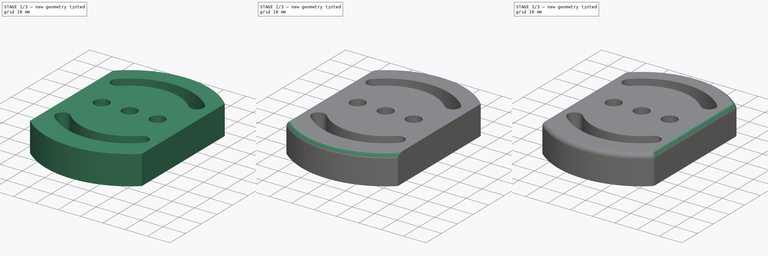
[diagram: build sequence overview — one tinted view per stage of 3, left to right]
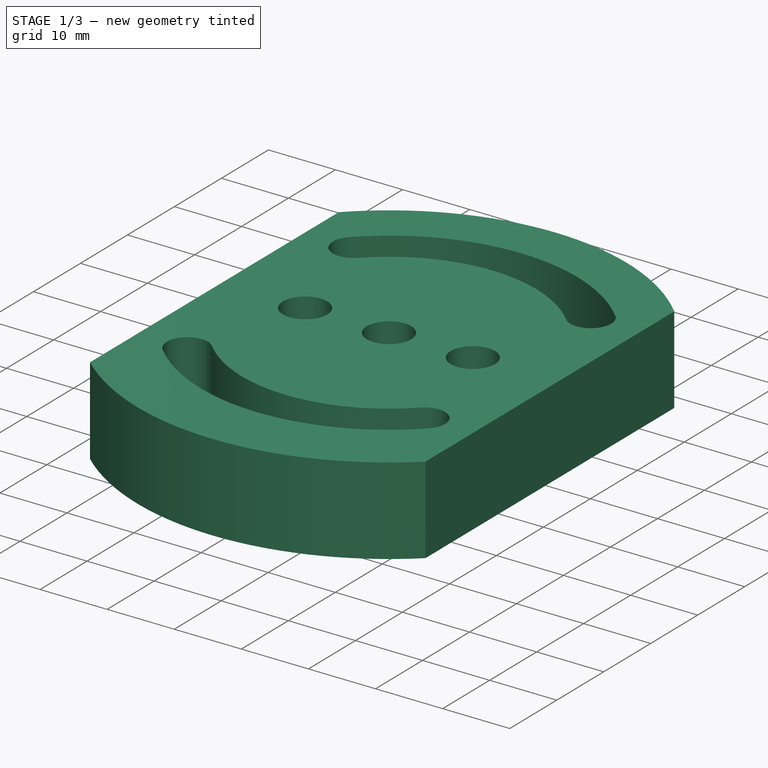
[diagram: stage 1 of 3 — iso view after this stage's code; geometry added in this stage tinted green]
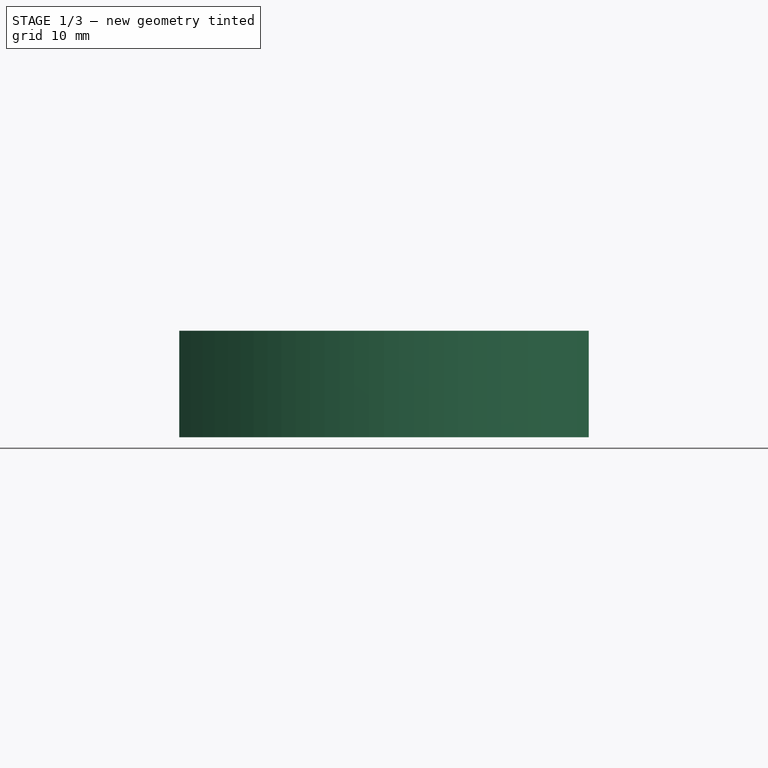
[diagram: stage 1 of 3 — front view after this stage's code; geometry added in this stage tinted green]
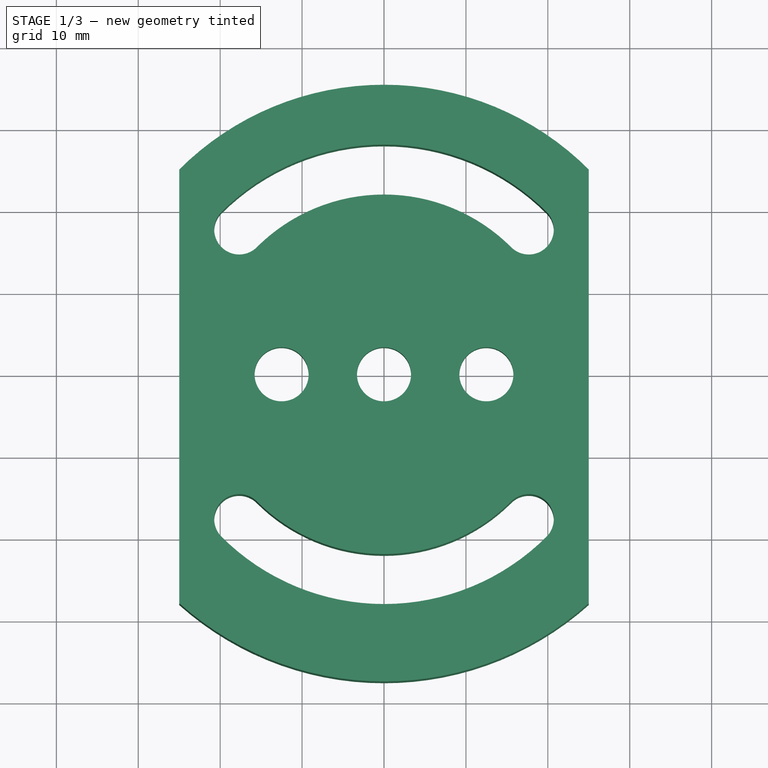
[diagram: stage 1 of 3 — top view after this stage's code; geometry added in this stage tinted green]
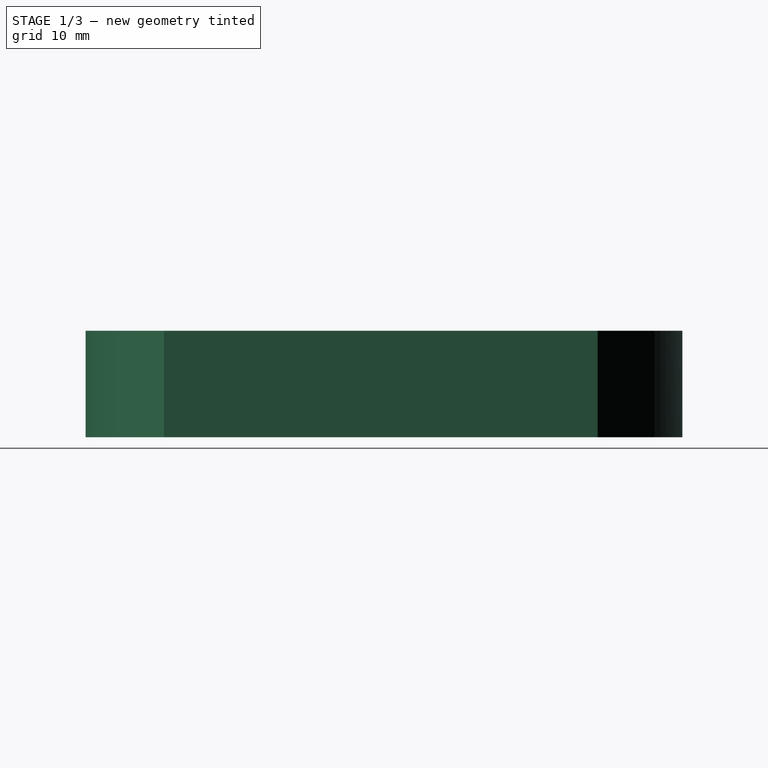
[diagram: stage 1 of 3 — right view after this stage's code; geometry added in this stage tinted green]
FCSTD DOCUMENT  (FreeCAD 0.20R29410 (Git))
Label: Post Mount
License: All rights reserved
LicenseURL: http://en.wikipedia.org/wiki/All_rights_reserved
objects: PartDesign::Fillet×4, Sketcher::SketchObject×2, App::Part×1, PartDesign::Pad×1, PartDesign::Hole×1, PartDesign::Body×1
note: 15 computed .brp shape members not serialized (recipe doc carries the construction recipe); baked Part::Feature solids carry a one-line shape summary decoded from their .brp

FEATURE [App::Part] Part
  Origin = -> Origin
FEATURE [Sketcher::SketchObject] Sketch
  FullyConstrained = true
  MapMode = 5
  Support = -> [XY_Plane001]
  sketch-geometry (16):
    g0: ArcOfCircle CenterX=0 CenterY=0 CenterZ=0 NormalX=0 NormalY=0 NormalZ=1 AngleXU=0 Radius=28.05 StartAngle=3.92699 EndAngle=5.49779
    g1: ArcOfCircle CenterX=0 CenterY=0 CenterZ=0 NormalX=0 NormalY=0 NormalZ=1 AngleXU=0 Radius=21.95 StartAngle=3.92699 EndAngle=5.49779
    g2: ArcOfCircle CenterX=-17.6777 CenterY=-17.6777 CenterZ=0 NormalX=0 NormalY=0 NormalZ=1 AngleXU=0 Radius=3.05 StartAngle=0.785398 EndAngle=3.92699
    g3: ArcOfCircle CenterX=17.6777 CenterY=-17.6777 CenterZ=0 NormalX=0 NormalY=0 NormalZ=1 AngleXU=0 Radius=3.05 StartAngle=5.49779 EndAngle=8.63938
    g4: ArcOfCircle CenterX=0 CenterY=0 CenterZ=0 NormalX=0 NormalY=0 NormalZ=1 AngleXU=0 Radius=35.3553 StartAngle=0.785398 EndAngle=2.35619
    g5: ArcOfCircle CenterX=1.2e-15 CenterY=4.4e-15 CenterZ=0 NormalX=0 NormalY=0 NormalZ=1 AngleXU=0 Radius=37.5 StartAngle=3.98266 EndAngle=5.44212
    g6: LineSegment StartX=-25 StartY=-27.9508 StartZ=0 EndX=-25 EndY=25 EndZ=0
    g7: LineSegment StartX=25 StartY=25 StartZ=0 EndX=25 EndY=-27.9508 EndZ=0
    g8: LineSegment StartX=0 StartY=0 StartZ=0 EndX=-17.6777 EndY=-17.6777 EndZ=0
    g9: LineSegment StartX=0 StartY=0 StartZ=0 EndX=17.6777 EndY=-17.6777 EndZ=0
    g10: ArcOfCircle CenterX=-17.6777 CenterY=17.6777 CenterZ=0 NormalX=0 NormalY=0 NormalZ=1 AngleXU=0 Radius=3.05 StartAngle=2.35619 EndAngle=5.49779
    g11: ArcOfCircle CenterX=1.2e-15 CenterY=4.4e-15 CenterZ=0 NormalX=0 NormalY=0 NormalZ=1 AngleXU=0 Radius=21.95 StartAngle=0.785397 EndAngle=2.35619
    g12: ArcOfCircle CenterX=0 CenterY=0 CenterZ=0 NormalX=0 NormalY=0 NormalZ=1 AngleXU=0 Radius=28.05 StartAngle=0.785398 EndAngle=2.35619
    g13: ArcOfCircle CenterX=17.6777 CenterY=17.6777 CenterZ=0 NormalX=0 NormalY=0 NormalZ=1 AngleXU=0 Radius=3.05 StartAngle=3.927 EndAngle=7.06858
    g14: LineSegment StartX=-17.6777 StartY=17.6777 StartZ=0 EndX=0 EndY=0 EndZ=0
    g15: LineSegment StartX=17.6777 StartY=17.6777 StartZ=0 EndX=0 EndY=0 EndZ=0
  constraints (42):
    c: Coincident(g1,g0)
    c: Tangent(g2,g0) = -1.5708
    c: Tangent(g2,g1) = 1.5708
    c: Tangent(g1,g3) = 1.5708
    c: Tangent(g0,g3) = -1.5708
    c: Coincident(g4,g-1)
    c: Angle(g4) = 1.5708
    c: Distance(g5,g4) = 37.5
    c: Distance(g5,g4) = 37.5
    c: Radius(g3) = 3.05
    c: Coincident(g0,g4)
    c: Coincident(g6,g4)
    c: Vertical(g6)
    c: Coincident(g7,g4)
    c: Coincident(g7,g5)
    c: Vertical(g7)
    c: DistanceX(g4,g4) = 50
    c: Horizontal(g6,g5)
    c: Coincident(g8,g0)
    c: Coincident(g8,g2)
    c: Coincident(g9,g0)
    c: Coincident(g9,g3)
    c: Angle(g8,g9) = 1.5708
    c: Coincident(g5,g6)
    c: Distance(g0,g3) = 25
    c: Coincident(g11,g5)
    c: Coincident(g12,g0)
    c: Coincident(g13,g12)
    c: Coincident(g13,g11)
    c: Radius(g10) = 3.05
    c: Radius(g13) = 3.05
    c: Tangent(g12,g10) = -1.5708
    c: Tangent(g11,g10) = 1.5708
    c: Symmetric(g2,g13,g0)
    c: Vertical(g2,g10)
    c: Vertical(g3,g13)
    c: Coincident(g14,g10)
    c: Coincident(g14,g0)
    c: Coincident(g15,g13)
    c: Coincident(g15,g0)
    c: Angle(g15,g14) = 1.5708
    c: Radius(g5) = 37.5
FEATURE [PartDesign::Pad] Pad
  Direction = (0,0,1)
  Length = 13
  Length2 = 10
  Profile = -> Sketch
  ReferenceAxis = -> Sketch [N_Axis]
  Refine = true
  Type = 0
FEATURE [Sketcher::SketchObject] Sketch001
  FullyConstrained = true
  MapMode = 5
  Placement = pos=(0,0,0) rot=(1,0,0;3.14159rad)
  Support = -> [Pad]
  sketch-geometry (3):
    g0: Circle CenterX=0 CenterY=0 CenterZ=0 NormalX=0 NormalY=0 NormalZ=1 AngleXU=0 Radius=3.05
    g1: Circle CenterX=-12.5 CenterY=0 CenterZ=0 NormalX=0 NormalY=0 NormalZ=1 AngleXU=0 Radius=3.05
    g2: Circle CenterX=12.5 CenterY=0 CenterZ=0 NormalX=0 NormalY=0 NormalZ=1 AngleXU=0 Radius=3.05
  constraints (7):
    c: Coincident(g0,g-1)
    c: Horizontal(g1,g0)
    c: Distance(g1,g0) = 12.5
    c: Symmetric(g1,g2,g0)
    c: Radius(g1) = 3.05
    c: Radius(g2) = 3.05
    c: Radius(g0) = 3.05
FEATURE [PartDesign::Hole] Hole
  BaseFeature = -> Pad
  CustomThreadClearance = 0
  Depth = 25
  DepthType = 0
  Diameter = 6.6
  DrillForDepth = false
  DrillPoint = 1
  DrillPointAngle = 118
  HoleCutCountersinkAngle = 90
  HoleCutCustomValues = false
  HoleCutDepth = 6.4
  HoleCutDiameter = 11
  HoleCutType = 1
  ModelThread = false
  Profile = -> Sketch001
  Refine = true
  Tapered = false
  TaperedAngle = 90
  ThreadClass = 0
  ThreadDepth = 25
  ThreadDepthType = 0
  ThreadDirection = 0
  ThreadFit = 0
  ThreadSize = 14
  ThreadType = 1
  Threaded = false
  UseCustomThreadClearance = false
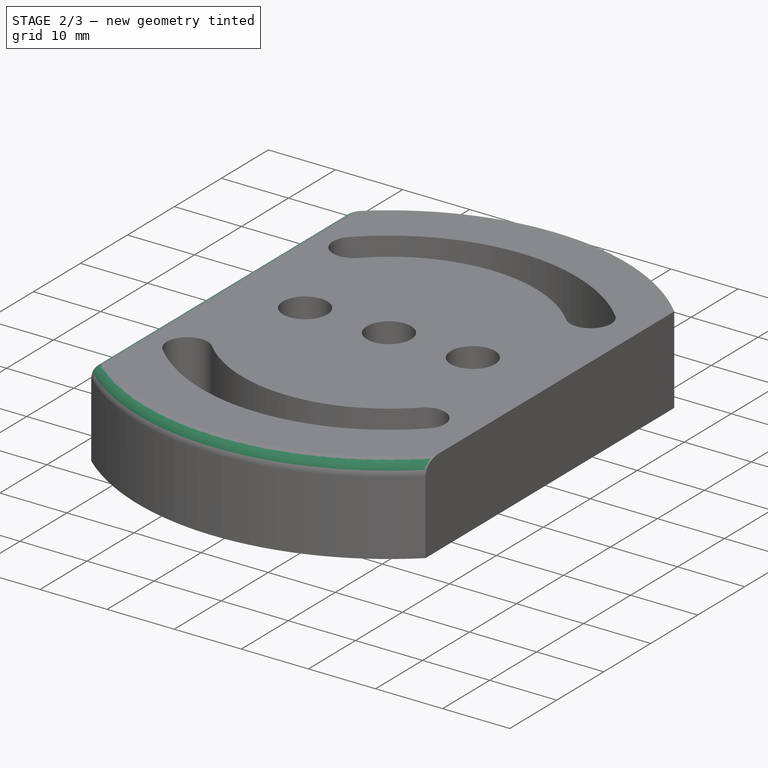
[diagram: stage 2 of 3 — iso view after this stage's code; geometry added in this stage tinted green]
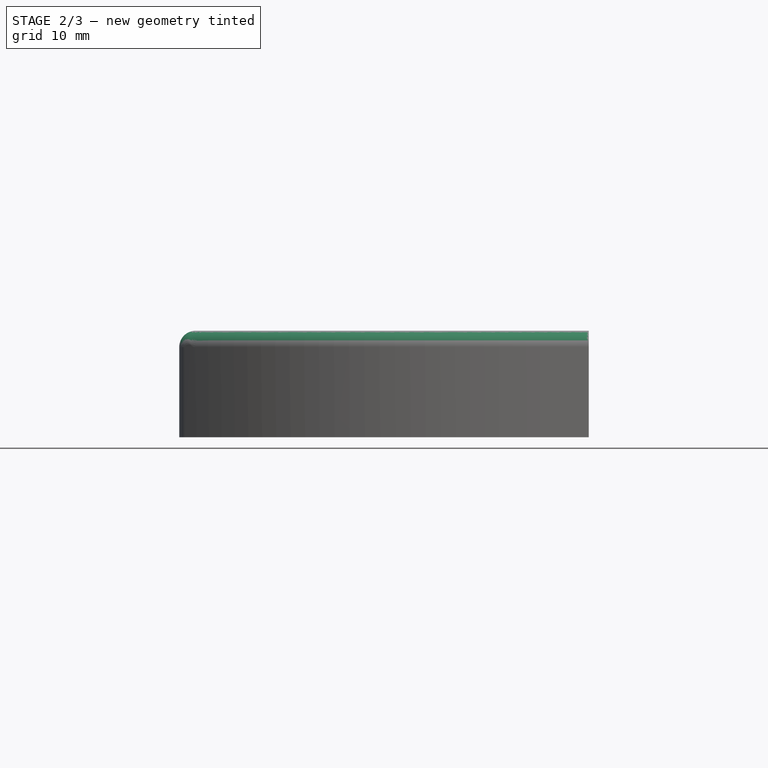
[diagram: stage 2 of 3 — front view after this stage's code; geometry added in this stage tinted green]
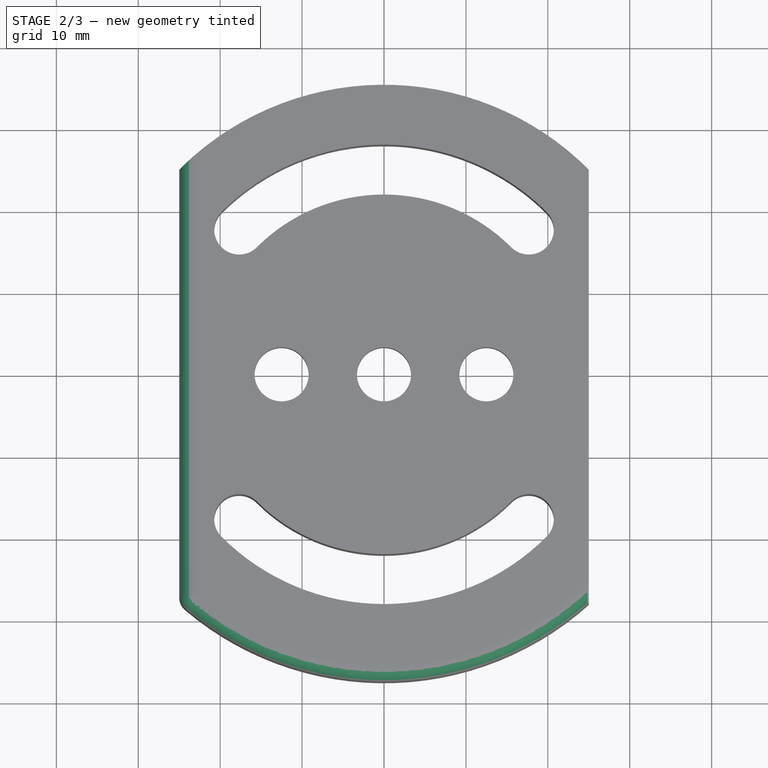
[diagram: stage 2 of 3 — top view after this stage's code; geometry added in this stage tinted green]
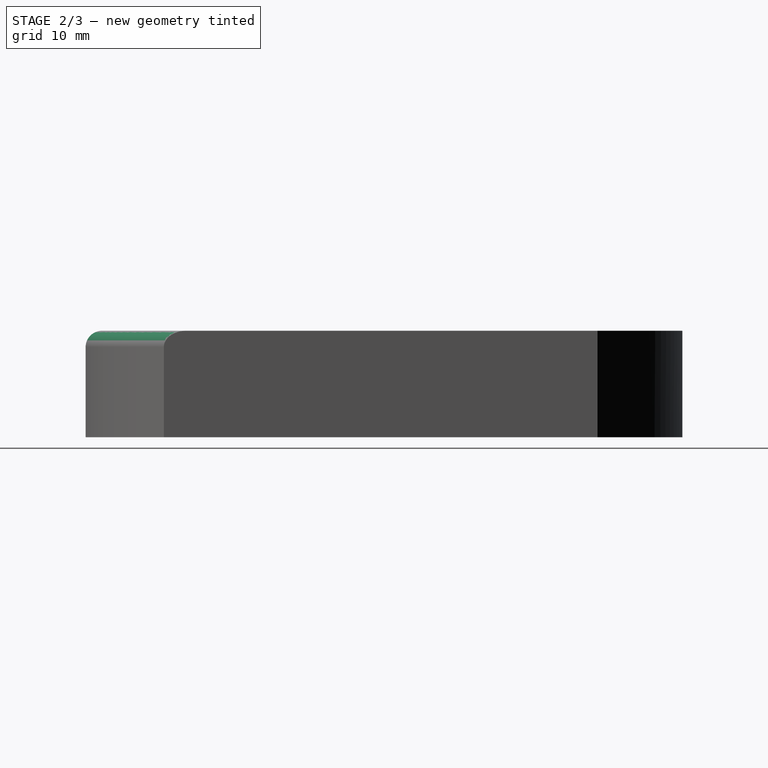
[diagram: stage 2 of 3 — right view after this stage's code; geometry added in this stage tinted green]
FEATURE [PartDesign::Fillet] Fillet
  Base = -> Hole [Edge10]
  BaseFeature = -> Hole
  Radius = 2
  Refine = true
  SupportTransform = false
  UseAllEdges = false
FEATURE [PartDesign::Fillet] Fillet001
  Base = -> Fillet [Edge25]
  BaseFeature = -> Fillet
  Radius = 2
  Refine = true
  SupportTransform = false
  UseAllEdges = false
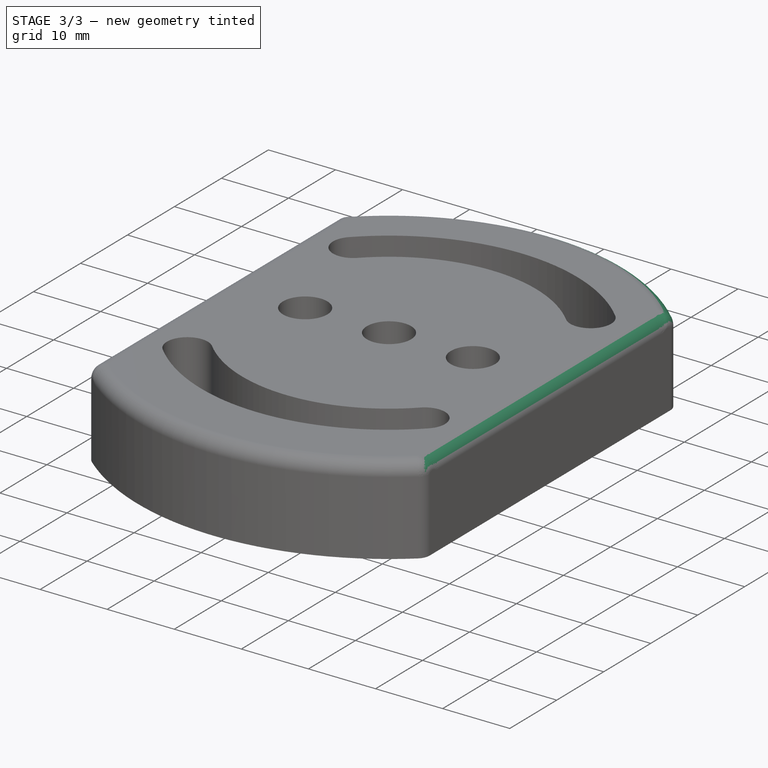
[diagram: stage 3 of 3 — iso view after this stage's code; geometry added in this stage tinted green]
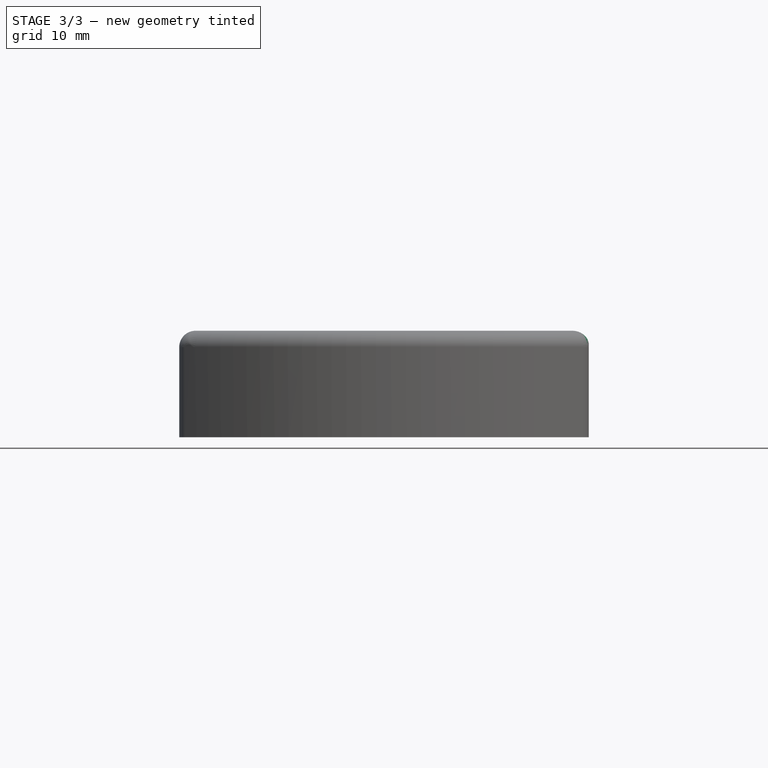
[diagram: stage 3 of 3 — front view after this stage's code; geometry added in this stage tinted green]
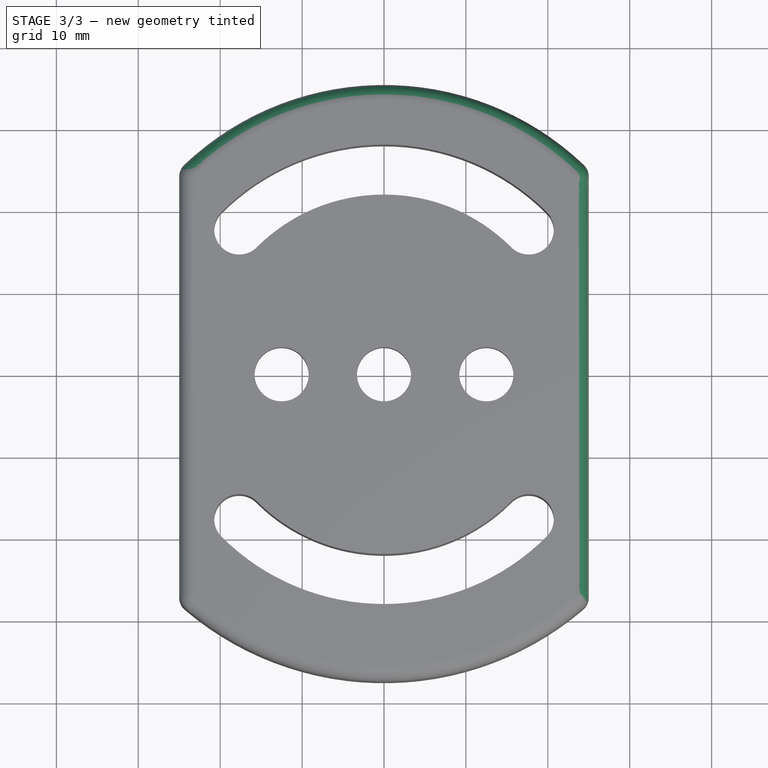
[diagram: stage 3 of 3 — top view after this stage's code; geometry added in this stage tinted green]
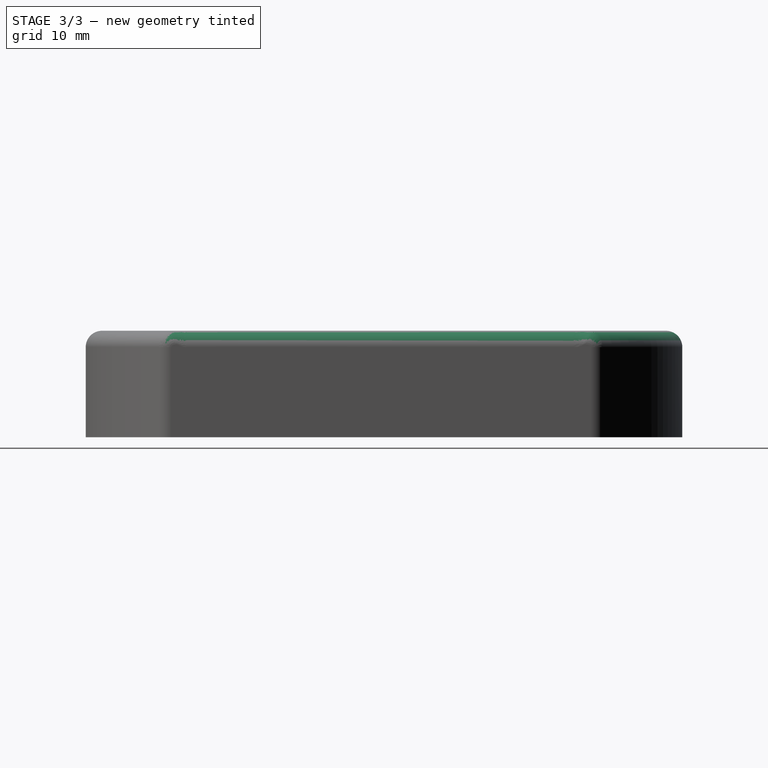
[diagram: stage 3 of 3 — right view after this stage's code; geometry added in this stage tinted green]
FEATURE [PartDesign::Fillet] Fillet002
  Base = -> Fillet001 [Edge12]
  BaseFeature = -> Fillet001
  Radius = 2
  Refine = true
  SupportTransform = false
  UseAllEdges = false
FEATURE [PartDesign::Fillet] Fillet003
  Base = -> Fillet002 [Edge36]
  BaseFeature = -> Fillet002
  Radius = 2
  Refine = true
  SupportTransform = false
  UseAllEdges = false
FEATURE [PartDesign::Body] Body
  Group = -> [Sketch,Pad,Sketch001,Hole,Fillet,Fillet001,Fillet002,Fillet003]
  Origin = -> Origin001
  Tip = -> Fillet003
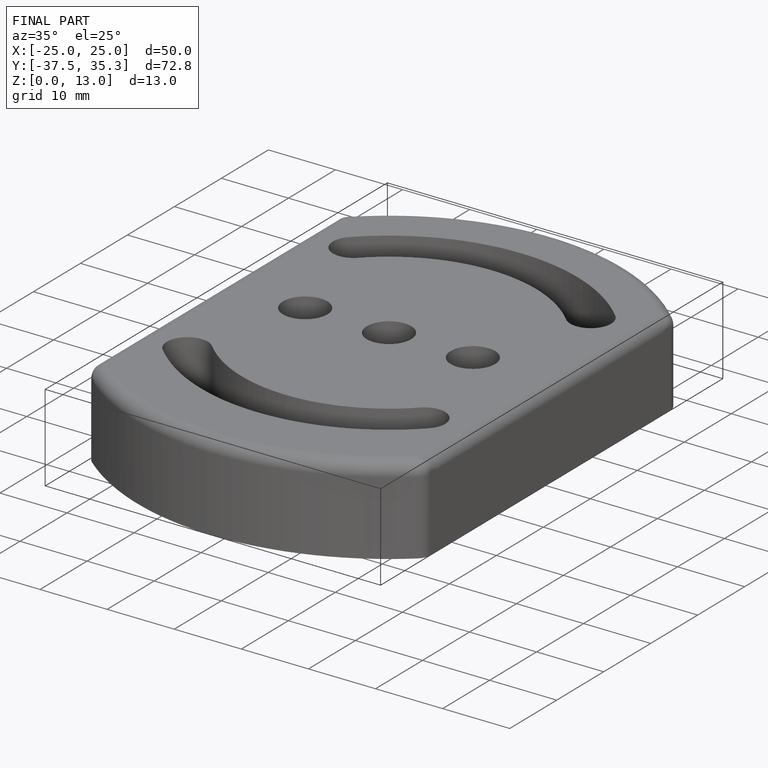
[diagram: finished part — iso view with bounding-box wireframe]
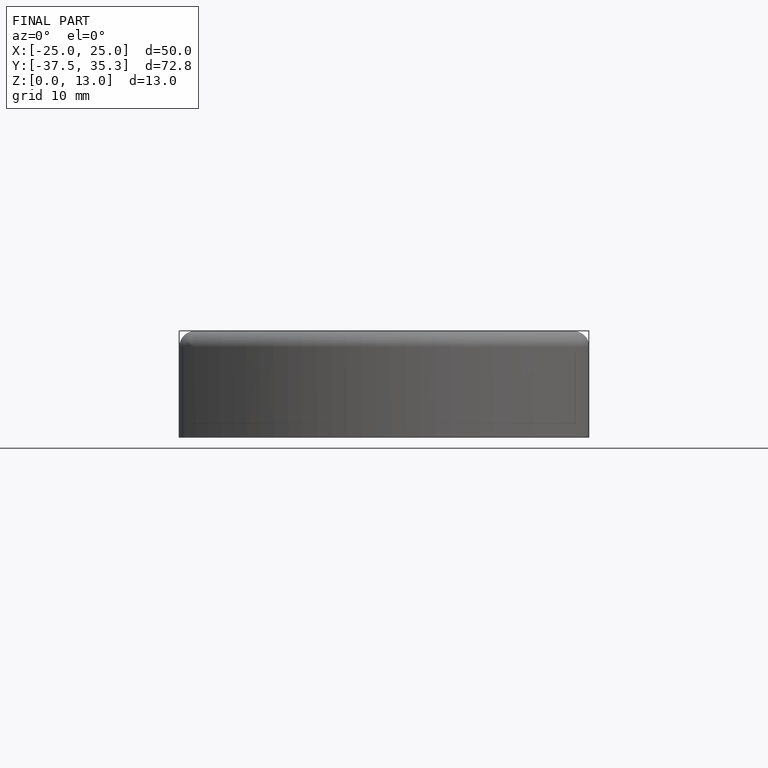
[diagram: finished part — front view with bounding-box wireframe]
